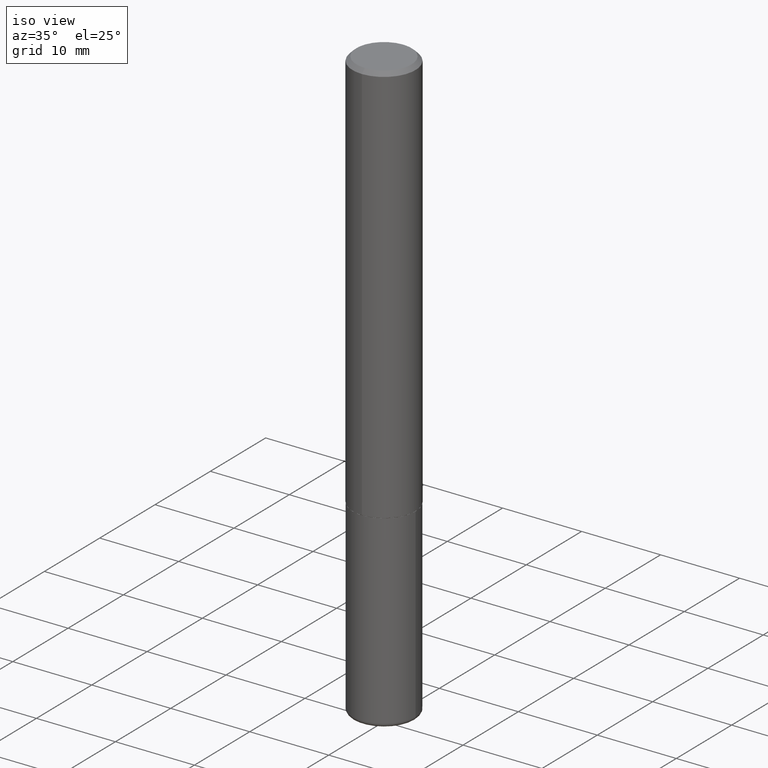
[diagram: clean part render]
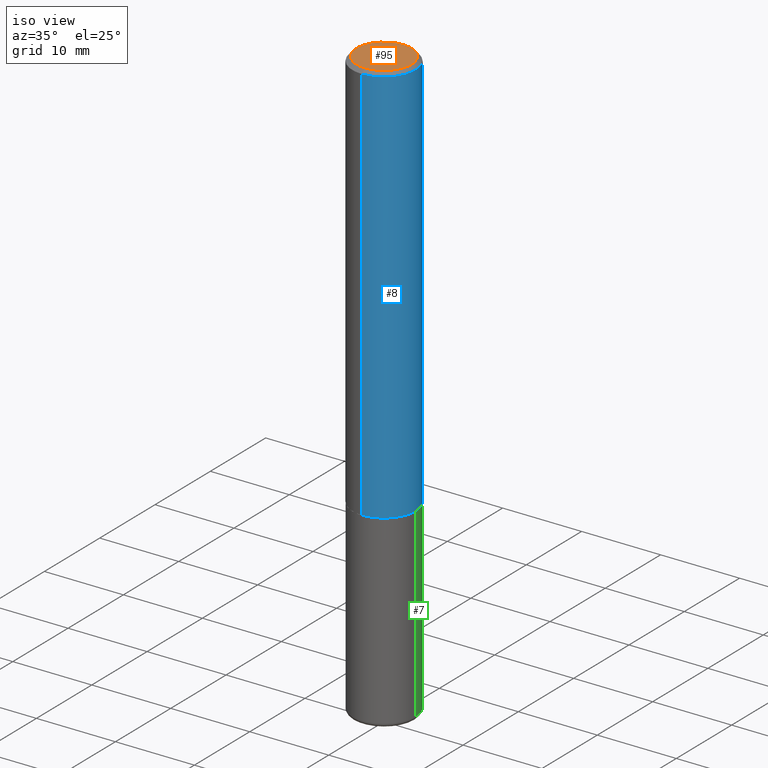
[diagram: same view with three faces highlighted in distinct colors, each labeled with its STEP entity id]
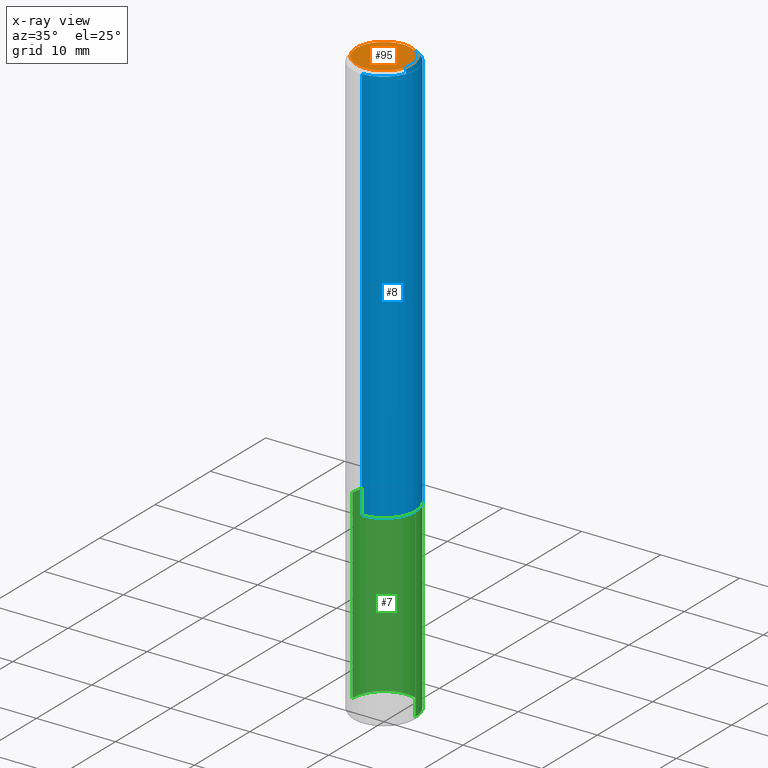
[diagram: x-ray of the same camera — body ghosted, the three highlighted faces saturated]
A machine part, iso view with three faces highlighted in distinct colors.
The next image is the same camera in x-ray (body ghosted, the three faces saturated) — at least one of them is partly hidden behind the body in this view.
Their STEP definitions:

[orange] entity #95 — the highlighted planar face has unit normal (0, -0, -1).
#39 = DIRECTION ( 'NONE',  ( -6.982962677686265922E-15, -1.000000000000000000, 3.492539597212410327E-15 ) ) ;
#46 = CARTESIAN_POINT ( 'NONE',  ( -6.786541213832790321E-45, 9.695248793097192351E-31, 2.775988223823005522E-16 ) ) ;
#54 = PLANE ( 'NONE',  #257 ) ;
#57 = CIRCLE ( 'NONE', #222, 0.1374999999999997335 ) ;
#61 = VERTEX_POINT ( 'NONE', #139 ) ;
#62 = DIRECTION ( 'NONE',  ( -6.982962677686265922E-15, -1.000000000000000000, 3.492539597212410327E-15 ) ) ;
#84 = ORIENTED_EDGE ( 'NONE', *, *, #361, .T. ) ;
#95 = ADVANCED_FACE ( 'NONE', ( #399 ), #54, .F. ) ;
#115 = DIRECTION ( 'NONE',  ( 6.982962677686265922E-15, 1.000000000000000000, -3.492539597212410327E-15 ) ) ;
#123 = AXIS2_PLACEMENT_3D ( 'NONE', #191, #349, #62 ) ;
#139 = CARTESIAN_POINT ( 'NONE',  ( -1.011923454671299856E-15, -0.1374999999999997335, 7.578230169990059811E-16 ) ) ;
#180 = EDGE_LOOP ( 'NONE', ( #270, #84 ) ) ;
#188 = VERTEX_POINT ( 'NONE', #283 ) ;
#191 = CARTESIAN_POINT ( 'NONE',  ( -6.786541213832790321E-45, 9.695248793097192351E-31, 2.775988223823005522E-16 ) ) ;
#222 = AXIS2_PLACEMENT_3D ( 'NONE', #46, #324, #39 ) ;
#257 = AXIS2_PLACEMENT_3D ( 'NONE', #408, #308, #115 ) ;
#269 = EDGE_CURVE ( 'NONE', #188, #61, #281, .T. ) ;
#270 = ORIENTED_EDGE ( 'NONE', *, *, #269, .T. ) ;
#281 = CIRCLE ( 'NONE', #123, 0.1374999999999997335 ) ;
#283 = CARTESIAN_POINT ( 'NONE',  ( 1.029986994958723590E-15, 0.1374999999999997335, -2.026253722344048274E-16 ) ) ;
#308 = DIRECTION ( 'NONE',  ( 2.444729828315543719E-29, -3.492539597212410327E-15, -1.000000000000000000 ) ) ;
#324 = DIRECTION ( 'NONE',  ( -2.444729828315544280E-29, 3.492539597212409932E-15, 1.000000000000000000 ) ) ;
#349 = DIRECTION ( 'NONE',  ( -2.444729828315544280E-29, 3.492539597212409932E-15, 1.000000000000000000 ) ) ;
#361 = EDGE_CURVE ( 'NONE', #61, #188, #57, .T. ) ;
#399 = FACE_OUTER_BOUND ( 'NONE', #180, .T. ) ;
#408 = CARTESIAN_POINT ( 'NONE',  ( 9.601573681818597005E-16, 0.1374999999999997335, -3.414247834255550788E-16 ) ) ;

[blue] entity #8 — the highlighted cylindrical surface (partial cylindrical patch) has radius 4.0005 mm, axis along (-0, 0, 1).
#3 = LINE ( 'NONE', #181, #110 ) ;
#8 = ADVANCED_FACE ( 'NONE', ( #264 ), #409, .T. ) ;
#18 = ORIENTED_EDGE ( 'NONE', *, *, #186, .T. ) ;
#20 = AXIS2_PLACEMENT_3D ( 'NONE', #112, #224, #78 ) ;
#29 = ORIENTED_EDGE ( 'NONE', *, *, #398, .F. ) ;
#30 = CARTESIAN_POINT ( 'NONE',  ( 1.099816621735587480E-15, 0.1574999999999999456, -0.02000000000000058328 ) ) ;
#55 = ORIENTED_EDGE ( 'NONE', *, *, #245, .F. ) ;
#68 = CARTESIAN_POINT ( 'NONE',  ( 1.119104808822183439E-15, 0.1574999999999932287, -2.006899999999999906 ) ) ;
#71 = DIRECTION ( 'NONE',  ( -2.444729828315544280E-29, 3.492539597212409932E-15, 1.000000000000000000 ) ) ;
#75 = DIRECTION ( 'NONE',  ( -2.444729828315544280E-29, 3.492539597212409932E-15, 1.000000000000000000 ) ) ;
#78 = DIRECTION ( 'NONE',  ( -6.982962677686265133E-15, -1.000000000000000000, 3.492539597212409932E-15 ) ) ;
#86 = VECTOR ( 'NONE', #291, 39.37007874015748143 ) ;
#110 = VECTOR ( 'NONE', #321, 39.37007874015748143 ) ;
#112 = CARTESIAN_POINT ( 'NONE',  ( 0.000000000000000000, 0.000000000000000000, 0.000000000000000000 ) ) ;
#121 = CARTESIAN_POINT ( 'NONE',  ( -1.080528434649015779E-15, -0.1575000000000000844, -0.01999999999999948347 ) ) ;
#128 = CARTESIAN_POINT ( 'NONE',  ( -1.099816621735539360E-15, -0.1575000000000072453, -2.006899999999999018 ) ) ;
#151 = VERTEX_POINT ( 'NONE', #121 ) ;
#152 = VERTEX_POINT ( 'NONE', #30 ) ;
#165 = DIRECTION ( 'NONE',  ( -6.982962677686265922E-15, -1.000000000000000000, 3.469013325287948560E-15 ) ) ;
#181 = CARTESIAN_POINT ( 'NONE',  ( 1.119104808822158392E-15, 0.1575000000000001399, -5.500749865609550376E-16 ) ) ;
#186 = EDGE_CURVE ( 'NONE', #234, #152, #3, .T. ) ;
#194 = CARTESIAN_POINT ( 'NONE',  ( -1.099816621735587677E-15, -0.1575000000000001399, 5.500749865609550376E-16 ) ) ;
#208 = EDGE_LOOP ( 'NONE', ( #388, #18, #55, #29 ) ) ;
#217 = VERTEX_POINT ( 'NONE', #128 ) ;
#224 = DIRECTION ( 'NONE',  ( -2.444729828315544280E-29, 3.492539597212409932E-15, 1.000000000000000000 ) ) ;
#234 = VERTEX_POINT ( 'NONE', #68 ) ;
#242 = DIRECTION ( 'NONE',  ( -6.982962677686264344E-15, -1.000000000000000000, 3.496114991891764787E-15 ) ) ;
#244 = AXIS2_PLACEMENT_3D ( 'NONE', #358, #71, #242 ) ;
#245 = EDGE_CURVE ( 'NONE', #151, #152, #274, .T. ) ;
#264 = FACE_OUTER_BOUND ( 'NONE', #208, .T. ) ;
#274 = CIRCLE ( 'NONE', #244, 0.1575000000000000289 ) ;
#291 = DIRECTION ( 'NONE',  ( -2.444729828315544280E-29, 3.492539597212410327E-15, 1.000000000000000000 ) ) ;
#321 = DIRECTION ( 'NONE',  ( -2.444729828315544280E-29, 3.492539597212410327E-15, 1.000000000000000000 ) ) ;
#334 = EDGE_CURVE ( 'NONE', #217, #234, #345, .T. ) ;
#345 = CIRCLE ( 'NONE', #364, 0.1575000000000002232 ) ;
#358 = CARTESIAN_POINT ( 'NONE',  ( 4.889459656631096617E-31, -6.985079194424830218E-17, -0.02000000000000003511 ) ) ;
#364 = AXIS2_PLACEMENT_3D ( 'NONE', #394, #75, #165 ) ;
#365 = LINE ( 'NONE', #194, #86 ) ;
#388 = ORIENTED_EDGE ( 'NONE', *, *, #334, .T. ) ;
#394 = CARTESIAN_POINT ( 'NONE',  ( 4.906328292446464760E-29, -7.009177717645583542E-15, -2.006899999999999462 ) ) ;
#398 = EDGE_CURVE ( 'NONE', #217, #151, #365, .T. ) ;
#409 = CYLINDRICAL_SURFACE ( 'NONE', #20, 0.1575000000000001399 ) ;

[green] entity #7 — the highlighted cylindrical surface (partial cylindrical patch) has radius 4.0005 mm, axis along (-0, 0, 1).
#7 = ADVANCED_FACE ( 'NONE', ( #367 ), #339, .T. ) ;
#15 = CARTESIAN_POINT ( 'NONE',  ( 0.000000000000000000, 0.000000000000000000, 0.000000000000000000 ) ) ;
#27 = VERTEX_POINT ( 'NONE', #207 ) ;
#28 = CARTESIAN_POINT ( 'NONE',  ( 0.1575000000000000011, -1.099816621735586889E-15, 7.679978421878598033E-30 ) ) ;
#41 = CARTESIAN_POINT ( 'NONE',  ( -0.1575000000000000011, 1.119104808822157801E-15, -7.747322767151475583E-30 ) ) ;
#42 = ORIENTED_EDGE ( 'NONE', *, *, #223, .F. ) ;
#51 = AXIS2_PLACEMENT_3D ( 'NONE', #15, #140, #146 ) ;
#90 = ORIENTED_EDGE ( 'NONE', *, *, #329, .T. ) ;
#94 = CARTESIAN_POINT ( 'NONE',  ( 0.1574999999999998346, -1.134068053669641403E-14, -2.933100000000000041 ) ) ;
#103 = DIRECTION ( 'NONE',  ( -2.445468806185136877E-29, 3.491481338843145188E-15, 1.000000000000000000 ) ) ;
#104 = DIRECTION ( 'NONE',  ( 1.000000000000000000, -6.982962677686261977E-15, 0.000000000000000000 ) ) ;
#126 = LINE ( 'NONE', #28, #204 ) ;
#131 = CIRCLE ( 'NONE', #135, 0.1575000000000000011 ) ;
#135 = AXIS2_PLACEMENT_3D ( 'NONE', #395, #168, #104 ) ;
#140 = DIRECTION ( 'NONE',  ( -2.445468806185136597E-29, 3.491481338843145583E-15, 1.000000000000000000 ) ) ;
#143 = VECTOR ( 'NONE', #103, 39.37007874015748143 ) ;
#146 = DIRECTION ( 'NONE',  ( 1.000000000000000000, -6.982962677686265922E-15, 4.876176775795935232E-29 ) ) ;
#155 = AXIS2_PLACEMENT_3D ( 'NONE', #354, #417, #413 ) ;
#168 = DIRECTION ( 'NONE',  ( -2.445468806185136597E-29, 3.491481338843145583E-15, 1.000000000000000000 ) ) ;
#171 = ORIENTED_EDGE ( 'NONE', *, *, #219, .F. ) ;
#189 = CIRCLE ( 'NONE', #155, 0.1575000000000000011 ) ;
#195 = CARTESIAN_POINT ( 'NONE',  ( 0.1575000000000000011, -8.110362001998737613E-15, -2.007899999999999796 ) ) ;
#204 = VECTOR ( 'NONE', #386, 39.37007874015748143 ) ;
#207 = CARTESIAN_POINT ( 'NONE',  ( -0.1574999999999998346, -9.121759106138672895E-15, -2.933100000000000041 ) ) ;
#212 = ORIENTED_EDGE ( 'NONE', *, *, #387, .T. ) ;
#219 = EDGE_CURVE ( 'NONE', #381, #362, #189, .T. ) ;
#223 = EDGE_CURVE ( 'NONE', #249, #381, #126, .T. ) ;
#249 = VERTEX_POINT ( 'NONE', #94 ) ;
#329 = EDGE_CURVE ( 'NONE', #27, #362, #331, .T. ) ;
#331 = LINE ( 'NONE', #41, #143 ) ;
#339 = CYLINDRICAL_SURFACE ( 'NONE', #51, 0.1575000000000000011 ) ;
#354 = CARTESIAN_POINT ( 'NONE',  ( 4.910256815939135309E-29, -7.010545380263150922E-15, -2.007899999999999796 ) ) ;
#357 = EDGE_LOOP ( 'NONE', ( #212, #90, #171, #42 ) ) ;
#362 = VERTEX_POINT ( 'NONE', #363 ) ;
#363 = CARTESIAN_POINT ( 'NONE',  ( -0.1575000000000000011, -7.506599838789833107E-15, -2.007899999999999796 ) ) ;
#367 = FACE_OUTER_BOUND ( 'NONE', #357, .T. ) ;
#381 = VERTEX_POINT ( 'NONE', #195 ) ;
#386 = DIRECTION ( 'NONE',  ( -2.445468806185136877E-29, 3.491481338843145188E-15, 1.000000000000000000 ) ) ;
#387 = EDGE_CURVE ( 'NONE', #249, #27, #131, .T. ) ;
#395 = CARTESIAN_POINT ( 'NONE',  ( 7.172804555421624566E-29, -1.024086391496083050E-14, -2.933100000000000041 ) ) ;
#413 = DIRECTION ( 'NONE',  ( 1.000000000000000000, -6.982962677686268288E-15, 0.000000000000000000 ) ) ;
#417 = DIRECTION ( 'NONE',  ( -2.445468806185136597E-29, 3.491481338843145583E-15, 1.000000000000000000 ) ) ;